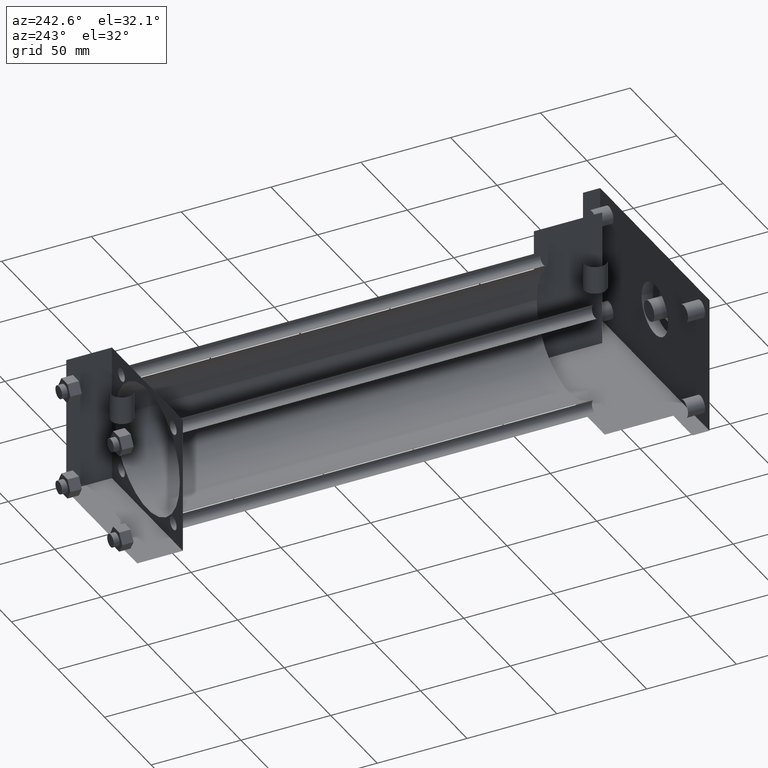
[diagram: clean part render]
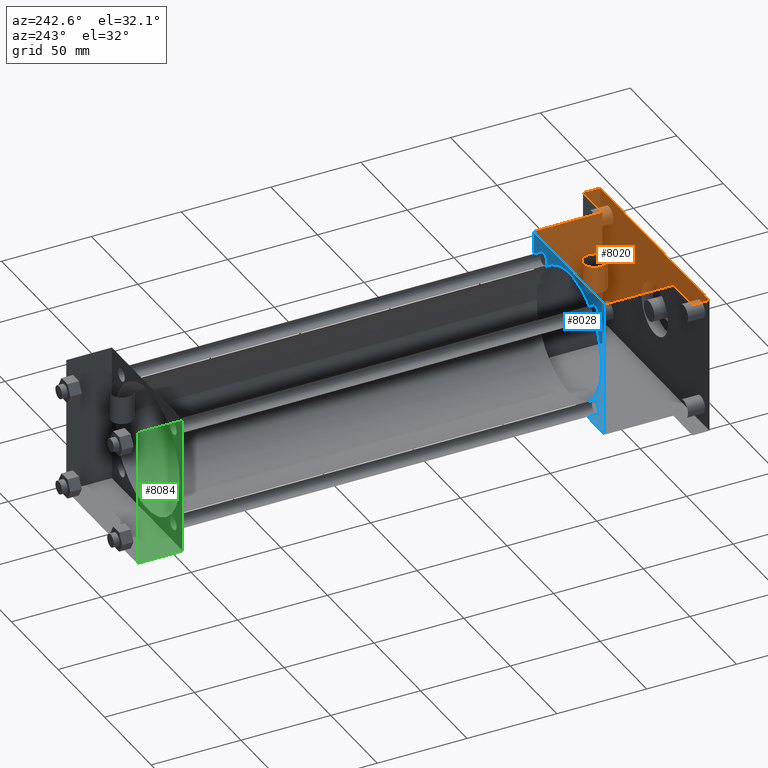
[diagram: same view with three faces highlighted in distinct colors, each labeled with its STEP entity id]
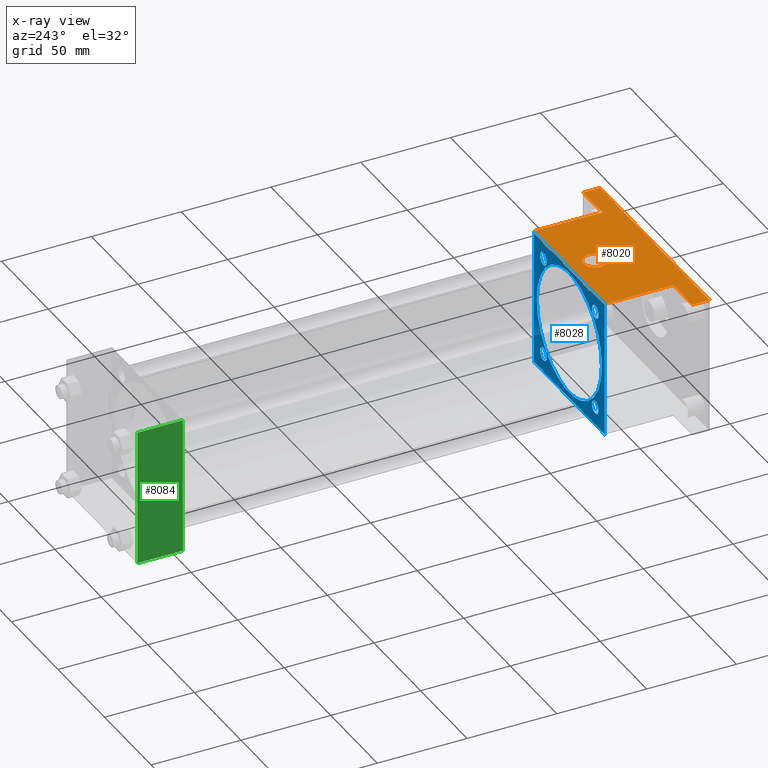
[diagram: x-ray of the same camera — body ghosted, the three highlighted faces saturated]
A machine part, auxiliary view with three faces highlighted in distinct colors.
The next image is the same camera in x-ray (body ghosted, the three faces saturated) — at least one of them is partly hidden behind the body in this view.
Their STEP definitions:

[orange] entity #8020 — the highlighted planar face has unit normal (0, 0, 1).
#497=VERTEX_POINT('',#498);
#498=CARTESIAN_POINT('',(3.810000000E+001,2.540000000E+001,3.810000000E+001));
#499=EDGE_CURVE('',#504,#497,#500,.T.);
#500=LINE('',#501,#502);
#501=CARTESIAN_POINT('',(5.873750000E+001,2.540000000E+001,3.810000000E+001));
#502=VECTOR('',#503,1.0E+000);
#503=DIRECTION('',(-1.0E+000,0.0E+000,0.0E+000));
#504=VERTEX_POINT('',#505);
#505=CARTESIAN_POINT('',(5.873750000E+001,2.540000000E+001,3.810000000E+001));
#591=EDGE_CURVE('',#504,#596,#592,.T.);
#592=LINE('',#593,#594);
#593=CARTESIAN_POINT('',(5.873750000E+001,2.540000000E+001,3.810000000E+001));
#594=VECTOR('',#595,1.0E+000);
#595=DIRECTION('',(0.0E+000,-1.0E+000,0.0E+000));
#596=VERTEX_POINT('',#597);
#597=CARTESIAN_POINT('',(5.873750000E+001,1.587500000E+001,3.810000000E+001));
#608=FACE_OUTER_BOUND('',#610,.T.);
#609=FACE_BOUND('',#611,.T.);
#610=EDGE_LOOP('',(#612,#613,#614,#615,#616,#617,#618,#619));
#611=EDGE_LOOP('',(#656));
#612=ORIENTED_EDGE('',*,*,#620,.T.);
#613=ORIENTED_EDGE('',*,*,#629,.F.);
#614=ORIENTED_EDGE('',*,*,#591,.F.);
#615=ORIENTED_EDGE('',*,*,#499,.T.);
#616=ORIENTED_EDGE('',*,*,#634,.F.);
#617=ORIENTED_EDGE('',*,*,#641,.T.);
#618=ORIENTED_EDGE('',*,*,#648,.T.);
#619=ORIENTED_EDGE('',*,*,#655,.T.);
#620=EDGE_CURVE('',#625,#626,#621,.T.);
#621=LINE('',#622,#623);
#622=CARTESIAN_POINT('',(-5.873750000E+001,2.540000000E+001,3.810000000E+001));
#623=VECTOR('',#624,1.0E+000);
#624=DIRECTION('',(0.0E+000,-1.0E+000,0.0E+000));
#625=VERTEX_POINT('',#627);
#626=VERTEX_POINT('',#628);
#627=CARTESIAN_POINT('',(-5.873750000E+001,2.540000000E+001,3.810000000E+001));
#628=CARTESIAN_POINT('',(-5.873750000E+001,1.587500000E+001,3.810000000E+001));
#629=EDGE_CURVE('',#596,#626,#630,.T.);
#630=LINE('',#631,#632);
#631=CARTESIAN_POINT('',(5.873750000E+001,1.587500000E+001,3.810000000E+001));
#632=VECTOR('',#633,1.0E+000);
#633=DIRECTION('',(-1.0E+000,0.0E+000,0.0E+000));
#634=EDGE_CURVE('',#639,#497,#635,.T.);
#635=LINE('',#636,#637);
#636=CARTESIAN_POINT('',(3.810000000E+001,6.350000000E+001,3.810000000E+001));
#637=VECTOR('',#638,1.0E+000);
#638=DIRECTION('',(0.0E+000,-1.0E+000,0.0E+000));
#639=VERTEX_POINT('',#640);
#640=CARTESIAN_POINT('',(3.810000000E+001,6.350000000E+001,3.810000000E+001));
#641=EDGE_CURVE('',#639,#646,#642,.T.);
#642=LINE('',#643,#644);
#643=CARTESIAN_POINT('',(3.810000000E+001,6.350000000E+001,3.810000000E+001));
#644=VECTOR('',#645,1.0E+000);
#645=DIRECTION('',(-1.0E+000,0.0E+000,0.0E+000));
#646=VERTEX_POINT('',#647);
#647=CARTESIAN_POINT('',(-3.810000000E+001,6.350000000E+001,3.810000000E+001));
#648=EDGE_CURVE('',#646,#653,#649,.T.);
#649=LINE('',#650,#651);
#650=CARTESIAN_POINT('',(-3.810000000E+001,6.350000000E+001,3.810000000E+001));
#651=VECTOR('',#652,1.0E+000);
#652=DIRECTION('',(0.0E+000,-1.0E+000,0.0E+000));
#653=VERTEX_POINT('',#654);
#654=CARTESIAN_POINT('',(-3.810000000E+001,2.540000000E+001,3.810000000E+001));
#655=EDGE_CURVE('',#653,#625,#500,.T.);
#656=ORIENTED_EDGE('',*,*,#657,.T.);
#657=EDGE_CURVE('',#663,#663,#658,.T.);
#658=CIRCLE('',#659,6.350000000E+000);
#659=AXIS2_PLACEMENT_3D('',#660,#661,#662);
#660=CARTESIAN_POINT('',(0.000000000E+000,4.921250000E+001,3.810000000E+001));
#661=DIRECTION('',(0.0E+000,0.0E+000,-1.0E+000));
#662=DIRECTION('',(1.0E+000,0.0E+000,0.0E+000));
#663=VERTEX_POINT('',#664);
#664=CARTESIAN_POINT('',(6.350000000E+000,4.921250000E+001,3.810000000E+001));
#665=PLANE('',#666);
#666=AXIS2_PLACEMENT_3D('',#667,#668,#669);
#667=CARTESIAN_POINT('',(5.873750000E+001,2.540000000E+001,3.810000000E+001));
#668=DIRECTION('',(0.0E+000,0.0E+000,1.0E+000));
#669=DIRECTION('',(1.0E+000,0.0E+000,0.0E+000));
#8020=ADVANCED_FACE('',(#608,#609),#665,.T.);

[blue] entity #8028 — the highlighted planar face has unit normal (0, 1, 0).
#557=VERTEX_POINT('',#558);
#558=CARTESIAN_POINT('',(-3.810000000E+001,6.350000000E+001,-3.810000000E+001));
#559=EDGE_CURVE('',#557,#564,#560,.T.);
#560=LINE('',#561,#562);
#561=CARTESIAN_POINT('',(-3.810000000E+001,6.350000000E+001,-3.810000000E+001));
#562=VECTOR('',#563,1.0E+000);
#563=DIRECTION('',(1.0E+000,0.0E+000,0.0E+000));
#564=VERTEX_POINT('',#565);
#565=CARTESIAN_POINT('',(3.810000000E+001,6.350000000E+001,-3.810000000E+001));
#639=VERTEX_POINT('',#640);
#640=CARTESIAN_POINT('',(3.810000000E+001,6.350000000E+001,3.810000000E+001));
#641=EDGE_CURVE('',#639,#646,#642,.T.);
#642=LINE('',#643,#644);
#643=CARTESIAN_POINT('',(3.810000000E+001,6.350000000E+001,3.810000000E+001));
#644=VECTOR('',#645,1.0E+000);
#645=DIRECTION('',(-1.0E+000,0.0E+000,0.0E+000));
#646=VERTEX_POINT('',#647);
#647=CARTESIAN_POINT('',(-3.810000000E+001,6.350000000E+001,3.810000000E+001));
#826=FACE_OUTER_BOUND('',#832,.T.);
#827=FACE_BOUND('',#833,.T.);
#828=FACE_BOUND('',#834,.T.);
#829=FACE_BOUND('',#835,.T.);
#830=FACE_BOUND('',#836,.T.);
#831=FACE_BOUND('',#837,.T.);
#832=EDGE_LOOP('',(#838));
#833=EDGE_LOOP('',(#847,#848,#849,#850));
#834=EDGE_LOOP('',(#861));
#835=EDGE_LOOP('',(#870));
#836=EDGE_LOOP('',(#879));
#837=EDGE_LOOP('',(#888));
#838=ORIENTED_EDGE('',*,*,#839,.F.);
#839=EDGE_CURVE('',#845,#845,#840,.T.);
#840=CIRCLE('',#841,3.492500000E+001);
#841=AXIS2_PLACEMENT_3D('',#842,#843,#844);
#842=CARTESIAN_POINT('',(0.000000000E+000,6.350000000E+001,0.000000000E+000));
#843=DIRECTION('',(0.0E+000,1.0E+000,0.0E+000));
#844=DIRECTION('',(1.0E+000,0.0E+000,0.0E+000));
#845=VERTEX_POINT('',#846);
#846=CARTESIAN_POINT('',(3.492500000E+001,6.350000000E+001,0.000000000E+000));
#847=ORIENTED_EDGE('',*,*,#559,.F.);
#848=ORIENTED_EDGE('',*,*,#851,.F.);
#849=ORIENTED_EDGE('',*,*,#641,.F.);
#850=ORIENTED_EDGE('',*,*,#856,.F.);
#851=EDGE_CURVE('',#646,#557,#852,.T.);
#852=LINE('',#853,#854);
#853=CARTESIAN_POINT('',(-3.810000000E+001,6.350000000E+001,3.810000000E+001));
#854=VECTOR('',#855,1.0E+000);
#855=DIRECTION('',(0.0E+000,0.0E+000,-1.0E+000));
#856=EDGE_CURVE('',#564,#639,#857,.T.);
#857=LINE('',#858,#859);
#858=CARTESIAN_POINT('',(3.810000000E+001,6.350000000E+001,-3.810000000E+001));
#859=VECTOR('',#860,1.0E+000);
#860=DIRECTION('',(0.0E+000,0.0E+000,1.0E+000));
#861=ORIENTED_EDGE('',*,*,#862,.F.);
#862=EDGE_CURVE('',#868,#868,#863,.T.);
#863=CIRCLE('',#864,3.568700000E+000);
#864=AXIS2_PLACEMENT_3D('',#865,#866,#867);
#865=CARTESIAN_POINT('',(-2.781300000E+001,6.350000000E+001,2.781300000E+001));
#866=DIRECTION('',(0.0E+000,1.0E+000,0.0E+000));
#867=DIRECTION('',(1.0E+000,0.0E+000,0.0E+000));
#868=VERTEX_POINT('',#869);
#869=CARTESIAN_POINT('',(-2.424430000E+001,6.350000000E+001,2.781300000E+001));
#870=ORIENTED_EDGE('',*,*,#871,.F.);
#871=EDGE_CURVE('',#877,#877,#872,.T.);
#872=CIRCLE('',#873,3.568700000E+000);
#873=AXIS2_PLACEMENT_3D('',#874,#875,#876);
#874=CARTESIAN_POINT('',(2.781300000E+001,6.350000000E+001,-2.781300000E+001));
#875=DIRECTION('',(0.0E+000,1.0E+000,0.0E+000));
#876=DIRECTION('',(1.0E+000,0.0E+000,0.0E+000));
#877=VERTEX_POINT('',#878);
#878=CARTESIAN_POINT('',(3.138170000E+001,6.350000000E+001,-2.781300000E+001));
#879=ORIENTED_EDGE('',*,*,#880,.F.);
#880=EDGE_CURVE('',#886,#886,#881,.T.);
#881=CIRCLE('',#882,3.568700000E+000);
#882=AXIS2_PLACEMENT_3D('',#883,#884,#885);
#883=CARTESIAN_POINT('',(-2.781300000E+001,6.350000000E+001,-2.781300000E+001));
#884=DIRECTION('',(0.0E+000,1.0E+000,0.0E+000));
#885=DIRECTION('',(1.0E+000,0.0E+000,0.0E+000));
#886=VERTEX_POINT('',#887);
#887=CARTESIAN_POINT('',(-2.424430000E+001,6.350000000E+001,-2.781300000E+001));
#888=ORIENTED_EDGE('',*,*,#889,.T.);
#889=EDGE_CURVE('',#895,#895,#890,.T.);
#890=CIRCLE('',#891,3.568700000E+000);
#891=AXIS2_PLACEMENT_3D('',#892,#893,#894);
#892=CARTESIAN_POINT('',(2.781300000E+001,6.350000000E+001,2.781300000E+001));
#893=DIRECTION('',(0.0E+000,-1.0E+000,0.0E+000));
#894=DIRECTION('',(-1.0E+000,0.0E+000,0.0E+000));
#895=VERTEX_POINT('',#896);
#896=CARTESIAN_POINT('',(2.424430000E+001,6.350000000E+001,2.781300000E+001));
#897=PLANE('',#898);
#898=AXIS2_PLACEMENT_3D('',#899,#900,#901);
#899=CARTESIAN_POINT('',(-3.810000000E+001,6.350000000E+001,-3.810000000E+001));
#900=DIRECTION('',(0.0E+000,1.0E+000,0.0E+000));
#901=DIRECTION('',(0.0E+000,0.0E+000,1.0E+000));
#8028=ADVANCED_FACE('',(#826,#827,#828,#829,#830,#831),#897,.T.);

[green] entity #8084 — the highlighted planar face has unit normal (-1, 0, 0).
#2244=VERTEX_POINT('',#2246);
#2246=CARTESIAN_POINT('',(-3.810000000E+001,3.238500000E+002,-3.810000000E+001));
#2248=EDGE_CURVE('',#2253,#2244,#2249,.T.);
#2249=LINE('',#2250,#2251);
#2250=CARTESIAN_POINT('',(-3.810000000E+001,3.238500000E+002,3.810000000E+001));
#2251=VECTOR('',#2252,1.0E+000);
#2252=DIRECTION('',(0.0E+000,0.0E+000,-1.0E+000));
#2253=VERTEX_POINT('',#2254);
#2254=CARTESIAN_POINT('',(-3.810000000E+001,3.238500000E+002,3.810000000E+001));
#2417=VERTEX_POINT('',#2419);
#2419=CARTESIAN_POINT('',(-3.810000000E+001,2.984500000E+002,-3.810000000E+001));
#2433=VERTEX_POINT('',#2434);
#2434=CARTESIAN_POINT('',(-3.810000000E+001,2.984500000E+002,3.810000000E+001));
#2435=EDGE_CURVE('',#2433,#2417,#2436,.T.);
#2436=LINE('',#2437,#2438);
#2437=CARTESIAN_POINT('',(-3.810000000E+001,2.984500000E+002,3.810000000E+001));
#2438=VECTOR('',#2439,1.0E+000);
#2439=DIRECTION('',(0.0E+000,0.0E+000,-1.0E+000));
#2462=EDGE_CURVE('',#2244,#2417,#2463,.T.);
#2463=LINE('',#2464,#2465);
#2464=CARTESIAN_POINT('',(-3.810000000E+001,3.238500000E+002,-3.810000000E+001));
#2465=VECTOR('',#2466,1.0E+000);
#2466=DIRECTION('',(0.0E+000,-1.0E+000,0.0E+000));
#2499=EDGE_CURVE('',#2253,#2433,#2500,.T.);
#2500=LINE('',#2501,#2502);
#2501=CARTESIAN_POINT('',(-3.810000000E+001,3.238500000E+002,3.810000000E+001));
#2502=VECTOR('',#2503,1.0E+000);
#2503=DIRECTION('',(0.0E+000,-1.0E+000,0.0E+000));
#2518=FACE_OUTER_BOUND('',#2520,.T.);
#2519=FACE_BOUND('',#2521,.T.);
#2520=EDGE_LOOP('',(#2522,#2523,#2524,#2525));
#2521=EDGE_LOOP('',(#2526));
#2522=ORIENTED_EDGE('',*,*,#2435,.F.);
#2523=ORIENTED_EDGE('',*,*,#2499,.F.);
#2524=ORIENTED_EDGE('',*,*,#2248,.T.);
#2525=ORIENTED_EDGE('',*,*,#2462,.T.);
#2526=ORIENTED_EDGE('',*,*,#2527,.T.);
#2527=EDGE_CURVE('',#2533,#2533,#2528,.T.);
#2528=CIRCLE('',#2529,2.778125000E+000);
#2529=AXIS2_PLACEMENT_3D('',#2530,#2531,#2532);
#2530=CARTESIAN_POINT('',(-3.810000000E+001,3.159125000E+002,0.000000000E+000));
#2531=DIRECTION('',(1.0E+000,0.0E+000,0.0E+000));
#2532=DIRECTION('',(0.0E+000,-1.0E+000,0.0E+000));
#2533=VERTEX_POINT('',#2534);
#2534=CARTESIAN_POINT('',(-3.810000000E+001,3.131343750E+002,0.000000000E+000));
#2535=PLANE('',#2536);
#2536=AXIS2_PLACEMENT_3D('',#2537,#2538,#2539);
#2537=CARTESIAN_POINT('',(-3.810000000E+001,3.238500000E+002,3.810000000E+001));
#2538=DIRECTION('',(-1.0E+000,0.0E+000,0.0E+000));
#2539=DIRECTION('',(0.0E+000,0.0E+000,1.0E+000));
#8084=ADVANCED_FACE('',(#2518,#2519),#2535,.T.);